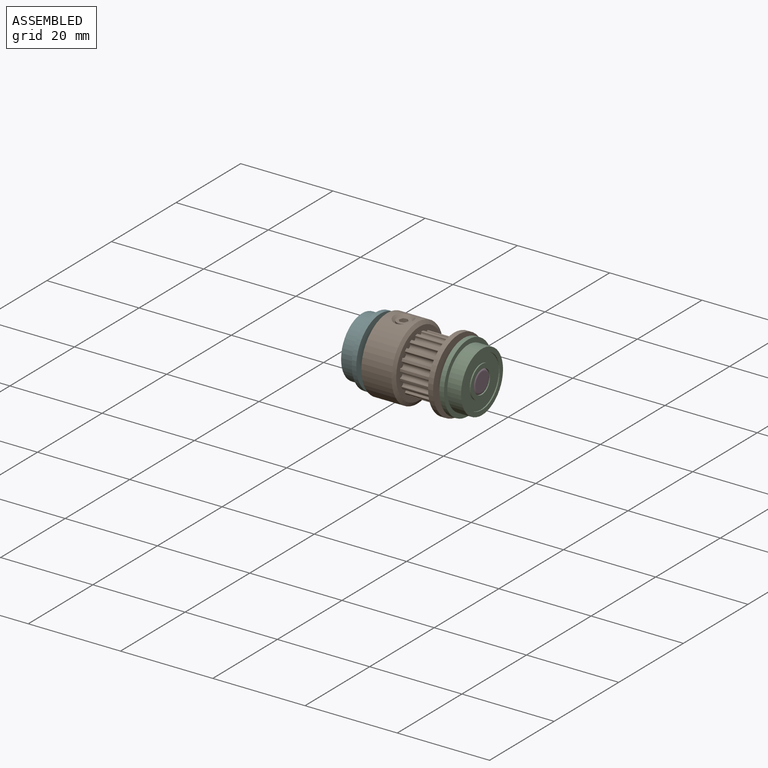
[diagram: assembled view]
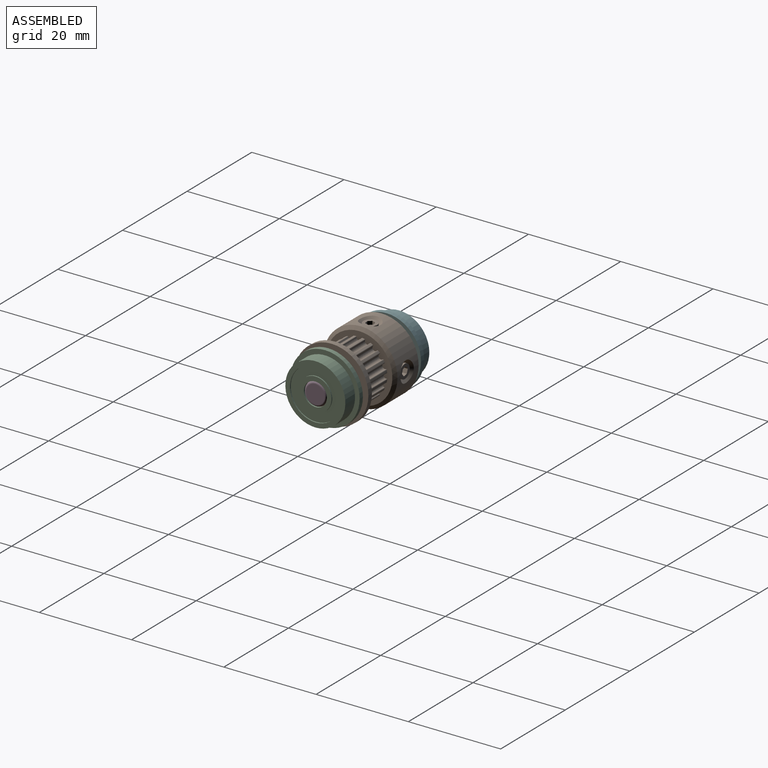
[diagram: assembled view, second angle]
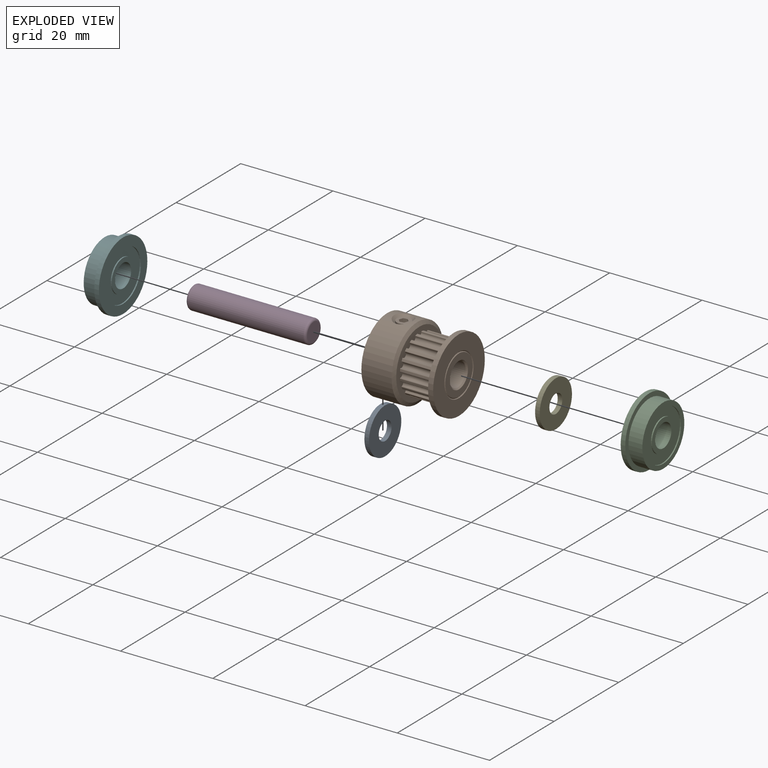
[diagram: exploded view]
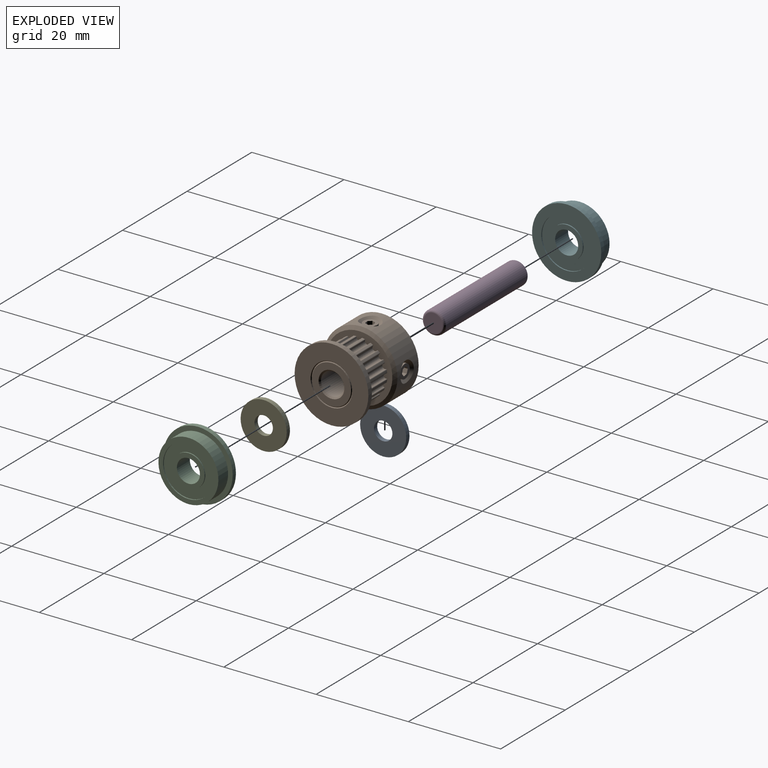
[diagram: exploded view, second angle]
ASSEMBLY  parts=6 mates=5
PART A: 4 faces, bbox 10x10x1 mm
  f0: cylinder r=2mm len=4mm, axis (0,0,-1), area 12.6mm2, adj f2,f3
  f1: cylinder r=5mm len=10mm, axis (0,0,-1), area 31.4mm2, adj f2,f3
  f2: plane 10x10mm, normal (0,0,1), area 66mm2, adj f0,f1
  f3: plane 10x10mm, normal (0,0,-1), area 66mm2, adj f0,f1
PART B: 119 faces, bbox 16x16x16 mm
  f0: cylinder r=1.5mm len=3mm, axis (0,0,1), area 2.9mm2, adj f1,f11
  f1: plane 3x3mm, normal (0,0,1), area 4.9mm2, adj f0,f2,f3,f4,f5,f6,f7
  f2: plane 1.5x0.87mm, normal (-0.95,0.33,0), area 1.4mm2, adj f1,f3,f7,f8
  f3: plane 1.5x0.7mm, normal (-0.75,-0.66,0), area 1.4mm2, adj f1,f2,f4,f8
  f4: plane 1.5x0.91mm, normal (0.19,-0.98,0), area 1.4mm2, adj f1,f3,f5,f8
  f5: plane 1.5x0.87mm, normal (0.95,-0.33,0), area 1.4mm2, adj f1,f4,f6,f8
  f6: plane 1.5x0.7mm, normal (0.75,0.66,0), area 1.4mm2, adj f1,f5,f7,f8
  f7: plane 1.5x0.91mm, normal (-0.19,0.98,0), area 1.4mm2, adj f1,f2,f6,f8
  f8: plane 1.81x1.75mm, normal (0,0,1), area 2.2mm2, adj f2,f3,f4,f5,f6,f7
  f9: cylinder r=1.5mm len=3mm, axis (0,0,-1), area 9.4mm2, adj f44,f118
  f10: cylinder r=1.5mm len=3mm, axis (0,-1,0), area 9.4mm2, adj f44,f108
  f11: bspline ~4.5x4.12mm, area 10.7mm2, adj f0,f45
  f12: bspline ~4.5x4.12mm, area 10.7mm2, adj f45,f109
  f13: cone r=2.8mm half-angle=45deg, axis (-1,0,0), area 7.1mm2, adj f44,f68
  f14: cone r=2.5mm half-angle=45deg, axis (1,0,0), area 7.1mm2, adj f44,f69
  f15: cylinder r=0.16mm len=7mm, axis (1,0,0), area 2mm2, adj f32,f46,f66,f67
  f16: cylinder r=0.16mm len=7mm, axis (1,0,0), area 2mm2, adj f29,f49,f66,f67
  f17: cylinder r=0.16mm len=7mm, axis (1,0,0), area 2mm2, adj f30,f50,f66,f67
  f18: cylinder r=0.16mm len=7mm, axis (1,0,0), area 2mm2, adj f31,f51,f66,f67
  f19: cylinder r=0.16mm len=7mm, axis (1,0,0), area 2mm2, adj f28,f48,f66,f67
  f20: cylinder r=0.16mm len=7mm, axis (1,0,0), area 2mm2, adj f27,f47,f66,f67
  f21: cylinder r=0.16mm len=7mm, axis (-1,0,0), area 2mm2, adj f31,f50,f66,f67
  f22: cylinder r=0.16mm len=7mm, axis (-1,0,0), area 2mm2, adj f51,f66,f67,f79
  f23: cylinder r=0.16mm len=7mm, axis (-1,0,0), area 2mm2, adj f52,f66,f67,f78
  f24: cylinder r=0.16mm len=7mm, axis (-1,0,0), area 2mm2, adj f53,f66,f67,f77
  f25: cylinder r=0.16mm len=7mm, axis (-1,0,0), area 2mm2, adj f54,f66,f67,f76
  f26: cylinder r=0.16mm len=7mm, axis (-1,0,0), area 2mm2, adj f55,f66,f67,f75
  f27: cylinder r=0.55mm len=7mm, axis (-1,0,0), area 12.5mm2, adj f20,f66,f67,f106
  f28: cylinder r=0.55mm len=7mm, axis (-1,0,0), area 12.5mm2, adj f19,f66,f67,f105
  f29: cylinder r=0.55mm len=7mm, axis (-1,0,0), area 12.5mm2, adj f16,f66,f67,f104
  f30: cylinder r=0.55mm len=7mm, axis (-1,0,0), area 12.5mm2, adj f17,f66,f67,f103
  f31: cylinder r=0.55mm len=7mm, axis (-1,0,0), area 12.5mm2, adj f18,f21,f66,f67
  f32: cylinder r=0.55mm len=7mm, axis (-1,0,0), area 12.5mm2, adj f15,f66,f67,f107
  f33: cylinder r=0.55mm len=7mm, axis (-1,0,0), area 12.5mm2, adj f66,f67,f88,f89
  f34: cylinder r=0.55mm len=7mm, axis (-1,0,0), area 12.5mm2, adj f66,f67,f86,f87
  f35: cylinder r=0.55mm len=7mm, axis (-1,0,0), area 12.5mm2, adj f66,f67,f84,f85
  f36: cylinder r=0.55mm len=7mm, axis (-1,0,0), area 12.5mm2, adj f66,f67,f82,f83
  f37: cylinder r=0.55mm len=7mm, axis (-1,0,0), area 12.5mm2, adj f66,f67,f80,f81
  f38: cylinder r=8mm len=16mm, axis (-1,0,0), area 55.3mm2, adj f43,f70
  f39: cone r=4.38mm half-angle=45deg, axis (1,0,0), area 6mm2, adj f40,f70
  f40: cone r=4.23mm half-angle=45deg, axis (-1,0,0), area 5.8mm2, adj f39,f69
  f41: cone r=7.21mm half-angle=60.2deg, axis (1,0,0), area 43.3mm2, adj f45,f68
  f42: cone r=8mm half-angle=60.2deg, axis (-1,0,0), area 43.3mm2, adj f45,f67
  f43: cone r=7.21mm half-angle=60.2deg, axis (1,0,0), area 43.3mm2, adj f38,f66
  f44: cylinder r=2.5mm len=15.4mm, axis (1,0,0), area 227.4mm2, adj f9,f10,f13,f14
  f45: cylinder r=8mm len=16mm, axis (-1,0,0), area 299.7mm2, adj f11,f12,f41,f42
  f46: cylinder r=6.11mm len=7mm, axis (-1,0,0), area 3.2mm2, adj f15,f66,f67,f106
  f47: cylinder r=6.11mm len=7mm, axis (-1,0,0), area 3.2mm2, adj f20,f66,f67,f105
  f48: cylinder r=6.11mm len=7mm, axis (-1,0,0), area 3.2mm2, adj f19,f66,f67,f104
  f49: cylinder r=6.11mm len=7mm, axis (-1,0,0), area 3.2mm2, adj f16,f66,f67,f103
  f50: cylinder r=6.11mm len=7mm, axis (-1,0,0), area 3.2mm2, adj f17,f21,f66,f67
  f51: cylinder r=6.11mm len=7mm, axis (-1,0,0), area 3.2mm2, adj f18,f22,f66,f67
  f52: cylinder r=6.11mm len=7mm, axis (-1,0,0), area 3.2mm2, adj f23,f66,f67,f102
  f53: cylinder r=6.11mm len=7mm, axis (-1,0,0), area 3.2mm2, adj f24,f66,f67,f101
  f54: cylinder r=6.11mm len=7mm, axis (-1,0,0), area 3.2mm2, adj f25,f66,f67,f100
  f55: cylinder r=6.11mm len=7mm, axis (-1,0,0), area 3.2mm2, adj f26,f66,f67,f99
  f56: cylinder r=6.11mm len=7mm, axis (-1,0,0), area 3.2mm2, adj f66,f67,f97,f98
  f57: cylinder r=6.11mm len=7mm, axis (-1,0,0), area 3.2mm2, adj f66,f67,f95,f96
  f58: cylinder r=6.11mm len=7mm, axis (-1,0,0), area 3.2mm2, adj f66,f67,f93,f94
  f59: cylinder r=6.11mm len=7mm, axis (-1,0,0), area 3.2mm2, adj f66,f67,f91,f92
  f60: cylinder r=6.11mm len=7mm, axis (-1,0,0), area 3.2mm2, adj f66,f67,f89,f90
  f61: cylinder r=6.11mm len=7mm, axis (-1,0,0), area 3.2mm2, adj f66,f67,f80,f107
  f62: cylinder r=6.11mm len=7mm, axis (-1,0,0), area 3.2mm2, adj f66,f67,f87,f88
  f63: cylinder r=6.11mm len=7mm, axis (-1,0,0), area 3.2mm2, adj f66,f67,f85,f86
  f64: cylinder r=6.11mm len=7mm, axis (-1,0,0), area 3.2mm2, adj f66,f67,f83,f84
  f65: cylinder r=6.11mm len=7mm, axis (-1,0,0), area 3.2mm2, adj f66,f67,f81,f82
  f66: plane 14.43x14.43mm, normal (-1,0,0), area 61.1mm2, adj f15,f16,f17,f18,f19,f20,f21,f22
  f67: plane 14.43x14.43mm, normal (1,0,0), area 61.1mm2, adj f15,f16,f17,f18,f19,f20,f21,f22
  f68: plane 14.43x14.43mm, normal (-1,0,0), area 138.8mm2, adj f13,f41
  f69: plane 8.46x8.46mm, normal (1,0,0), area 31.6mm2, adj f14,f40
  f70: plane 16x16mm, normal (1,0,0), area 136.4mm2, adj f38,f39
  f71: cylinder r=0.55mm len=7mm, axis (-1,0,0), area 12.5mm2, adj f66,f67,f90,f91
  f72: cylinder r=0.55mm len=7mm, axis (-1,0,0), area 12.5mm2, adj f66,f67,f92,f93
  f73: cylinder r=0.55mm len=7mm, axis (-1,0,0), area 12.5mm2, adj f66,f67,f94,f95
  f74: cylinder r=0.55mm len=7mm, axis (-1,0,0), area 12.5mm2, adj f66,f67,f96,f97
  f75: cylinder r=0.55mm len=7mm, axis (-1,0,0), area 12.5mm2, adj f26,f66,f67,f98
  f76: cylinder r=0.55mm len=7mm, axis (-1,0,0), area 12.5mm2, adj f25,f66,f67,f99
  f77: cylinder r=0.55mm len=7mm, axis (-1,0,0), area 12.5mm2, adj f24,f66,f67,f100
  f78: cylinder r=0.55mm len=7mm, axis (-1,0,0), area 12.5mm2, adj f23,f66,f67,f101
  f79: cylinder r=0.55mm len=7mm, axis (-1,0,0), area 12.5mm2, adj f22,f66,f67,f102
  f80: cylinder r=0.16mm len=7mm, axis (1,0,0), area 2mm2, adj f37,f61,f66,f67
  f81: cylinder r=0.16mm len=7mm, axis (-1,0,0), area 2mm2, adj f37,f65,f66,f67
  f82: cylinder r=0.16mm len=7mm, axis (1,0,0), area 2mm2, adj f36,f65,f66,f67
  f83: cylinder r=0.16mm len=7mm, axis (-1,0,0), area 2mm2, adj f36,f64,f66,f67
  f84: cylinder r=0.16mm len=7mm, axis (1,0,0), area 2mm2, adj f35,f64,f66,f67
  f85: cylinder r=0.16mm len=7mm, axis (-1,0,0), area 2mm2, adj f35,f63,f66,f67
  f86: cylinder r=0.16mm len=7mm, axis (1,0,0), area 2mm2, adj f34,f63,f66,f67
  f87: cylinder r=0.16mm len=7mm, axis (-1,0,0), area 2mm2, adj f34,f62,f66,f67
  f88: cylinder r=0.16mm len=7mm, axis (1,0,0), area 2mm2, adj f33,f62,f66,f67
  f89: cylinder r=0.16mm len=7mm, axis (-1,0,0), area 2mm2, adj f33,f60,f66,f67
  f90: cylinder r=0.16mm len=7mm, axis (1,0,0), area 2mm2, adj f60,f66,f67,f71
  f91: cylinder r=0.16mm len=7mm, axis (-1,0,0), area 2mm2, adj f59,f66,f67,f71
  f92: cylinder r=0.16mm len=7mm, axis (1,0,0), area 2mm2, adj f59,f66,f67,f72
  f93: cylinder r=0.16mm len=7mm, axis (-1,0,0), area 2mm2, adj f58,f66,f67,f72
  f94: cylinder r=0.16mm len=7mm, axis (1,0,0), area 2mm2, adj f58,f66,f67,f73
  f95: cylinder r=0.16mm len=7mm, axis (-1,0,0), area 2mm2, adj f57,f66,f67,f73
  f96: cylinder r=0.16mm len=7mm, axis (1,0,0), area 2mm2, adj f57,f66,f67,f74
  f97: cylinder r=0.16mm len=7mm, axis (-1,0,0), area 2mm2, adj f56,f66,f67,f74
  f98: cylinder r=0.16mm len=7mm, axis (1,0,0), area 2mm2, adj f56,f66,f67,f75
  f99: cylinder r=0.16mm len=7mm, axis (1,0,0), area 2mm2, adj f55,f66,f67,f76
  f100: cylinder r=0.16mm len=7mm, axis (1,0,0), area 2mm2, adj f54,f66,f67,f77
  f101: cylinder r=0.16mm len=7mm, axis (1,0,0), area 2mm2, adj f53,f66,f67,f78
  f102: cylinder r=0.16mm len=7mm, axis (1,0,0), area 2mm2, adj f52,f66,f67,f79
  f103: cylinder r=0.16mm len=7mm, axis (-1,0,0), area 2mm2, adj f30,f49,f66,f67
  f104: cylinder r=0.16mm len=7mm, axis (-1,0,0), area 2mm2, adj f29,f48,f66,f67
  f105: cylinder r=0.16mm len=7mm, axis (-1,0,0), area 2mm2, adj f28,f47,f66,f67
  f106: cylinder r=0.16mm len=7mm, axis (-1,0,0), area 2mm2, adj f27,f46,f66,f67
  f107: cylinder r=0.16mm len=7mm, axis (-1,0,0), area 2mm2, adj f32,f61,f66,f67
  f108: plane 3x3mm, normal (0,-1,0), area 7.1mm2, adj f10
  f109: cylinder r=1.5mm len=3mm, axis (0,1,0), area 2.9mm2, adj f12,f110
  f110: plane 3x3mm, normal (0,1,0), area 4.9mm2, adj f109,f111,f112,f113,f114,f115,f116
  f111: plane 1.5x0.87mm, normal (-0.95,0,-0.33), area 1.4mm2, adj f110,f112,f116,f117
  f112: plane 1.5x0.7mm, normal (-0.75,0,0.66), area 1.4mm2, adj f110,f111,f113,f117
  f113: plane 1.5x0.91mm, normal (0.19,0,0.98), area 1.4mm2, adj f110,f112,f114,f117
  f114: plane 1.5x0.87mm, normal (0.95,0,0.33), area 1.4mm2, adj f110,f113,f115,f117
  f115: plane 1.5x0.7mm, normal (0.75,0,-0.66), area 1.4mm2, adj f110,f114,f116,f117
  f116: plane 1.5x0.91mm, normal (-0.19,0,-0.98), area 1.4mm2, adj f110,f111,f115,f117
  f117: plane 1.81x1.75mm, normal (0,1,0), area 2.2mm2, adj f111,f112,f113,f114,f115,f116
  f118: plane 3x3mm, normal (0,0,-1), area 7.1mm2, adj f9
PART C: 14 faces, bbox 15x15x4 mm
  f0: plane 7x7mm, normal (0,0,-1), area 18.8mm2, adj f2,f11
  f1: plane 7x7mm, normal (0,0,1), area 18.8mm2, adj f2,f8
  f2: cylinder r=2.5mm len=5mm, axis (0,0,-1), area 62.8mm2, adj f0,f1
  f3: cylinder r=6.5mm len=13mm, axis (0,0,-1), area 122.5mm2, adj f4,f7
  f4: plane 13x13mm, normal (0,0,1), area 37.7mm2, adj f3,f9
  f5: plane 15x15mm, normal (0,0,-1), area 81.7mm2, adj f6,f12
  f6: cylinder r=7.5mm len=15mm, axis (0,0,-1), area 47.1mm2, adj f5,f7
  f7: plane 15x15mm, normal (0,0,1), area 44mm2, adj f3,f6
  f8: cylinder r=3.5mm len=7mm, axis (0,0,1), area 5.5mm2, adj f1,f10
  f9: cylinder r=5.5mm len=11mm, axis (0,0,1), area 8.6mm2, adj f4,f10
  f10: plane 11x11mm, normal (0,0,1), area 56.5mm2, adj f8,f9
  f11: cylinder r=3.5mm len=7mm, axis (0,0,1), area 5.5mm2, adj f0,f13
  f12: cylinder r=5.5mm len=11mm, axis (0,0,1), area 8.6mm2, adj f5,f13
  f13: plane 11x11mm, normal (0,0,-1), area 56.5mm2, adj f11,f12
PART D: 5 faces, bbox 5.4x5.4x26 mm
  f0: cylinder r=2.5mm len=25mm, axis (0,0,-1), area 392.7mm2, adj f3,f4
  f1: plane 4x4mm, normal (0,0,1), area 12.6mm2, adj f4
  f2: plane 4x4mm, normal (0,0,-1), area 12.6mm2, adj f3
  f3: torus R=2mm, axis (0,0,1), area 11.4mm2, adj f0,f2
  f4: torus R=2mm, axis (0,0,1), area 11.4mm2, adj f0,f1
PART E: same geometry as A
PART F: same geometry as C
PLACE A rot(axis=(0,1,0),90deg) t=(-8.8,-6.93,-6.82)mm
PLACE B t=(-7.8,-6.93,-6.82)mm
PLACE C rot(axis=(0,1,0),90deg) t=(9.2,-6.93,-6.82)mm
PLACE D rot(axis=(0,1,0),90deg) t=(-12.8,-6.93,-6.82)mm
PLACE E rot(axis=(0,1,0),90deg) t=(8.2,-6.93,-6.82)mm
PLACE F rot(axis=(0,-1,0),90deg) t=(-8.8,-6.93,-6.82)mm
MATE fastened B.f13 <-> A.f0  axis (-1,0,0) through (-7.8,-6.93,-6.82)mm
MATE fastened E.f0 <-> B.f13  axis (-1,0,0) through (8.2,-6.93,-6.82)mm
MATE fastened C.f2 <-> E.f0  axis (-1,0,0) through (9.2,-6.93,-6.82)mm
MATE fastened F.f8 <-> A.f0  axis (1,0,0) through (-8.8,-6.93,-6.82)mm
MATE fastened C.f2 <-> D.f0  axis (1,0,0) through (13.2,-6.93,-6.82)mm
